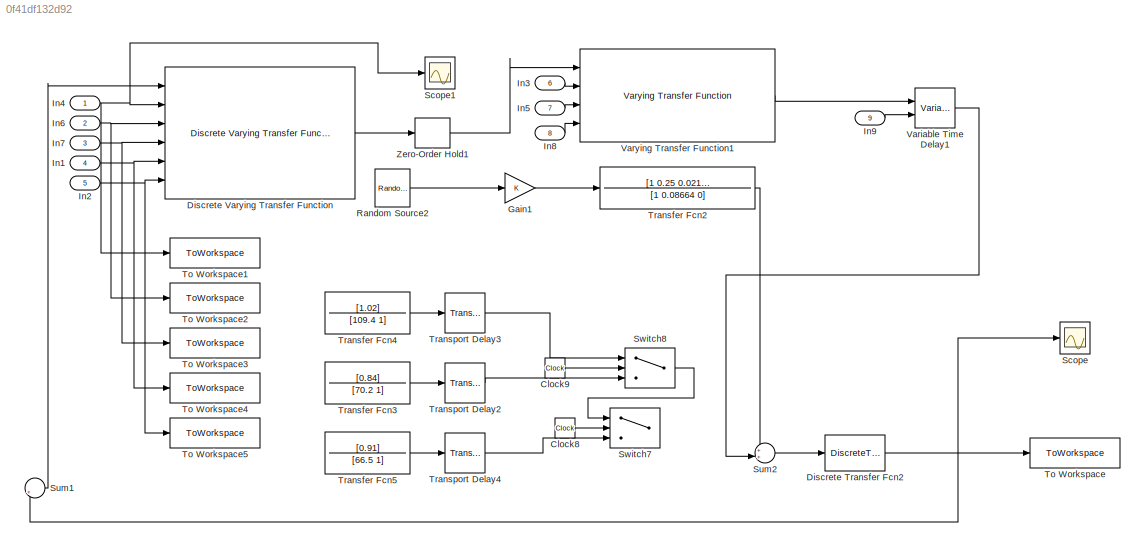
MODEL slx_0f41df132d92
KIND model
CONFIG AbsTol = auto
CONFIG EnableMultiTasking = off
CONFIG FixedStep = auto
CONFIG MaxStep = auto
CONFIG MinStep = auto
CONFIG RelTol = 1e-3
CONFIG SampleTimeConstraint = Unconstrained
CONFIG SolverName = VariableStepAuto
CONFIG StartTime = 0.0
CONFIG StopTime = 688000
BLOCK [Clock] Clock8
BLOCK [Clock] Clock9
BLOCK [DiscreteTransferFcn] Discrete Transfer Fcn2
  Denominator = [1]
  InputPortMap = u0
  Ports = [1, 1]
  SampleTime = Ts
BLOCK [Reference] Discrete Varying Transfer Function  REF=cstblocks/Linear Parameter Varying/Discrete Varying Transfer Function
  Ports = [6, 1]
  SourceBlock = cstblocks/Linear Parameter Varying/Discrete Varying Transfer Function
  SourceProductBaseCode = CT
  SourceType = Discrete Varying Transfer Function
BLOCK [Gain] Gain1
BLOCK [Inport] In1
  Port = 4
BLOCK [Inport] In2
  Port = 5
BLOCK [Inport] In3
  Port = 6
BLOCK [Inport] In4
BLOCK [Inport] In5
  Port = 7
BLOCK [Inport] In6
  Port = 2
BLOCK [Inport] In7
  Port = 3
BLOCK [Inport] In8
  Port = 8
BLOCK [Inport] In9
  Port = 9
BLOCK [Reference] Random Source2  REF=dspsrcs4/Random
Source
  Ports = [0, 1]
  SourceBlock = dspsrcs4/Random\nSource
  SourceProductBaseCode = DS
  SourceType = Random Source
  UserDataPersistent = on
BLOCK [Scope] Scope
  Floating = off
  NumInputPorts = 1
  Ports = [1]
  ScopeSpecificationString = Simulink.scopes.TimeScopeBlockCfg('CurrentConfiguration', extmgr.ConfigurationSet(extmgr.Configuration('Core','General UI',true),extmgr.Configuration('Core','Source UI',true),extmgr.Configuration('Sources','WiredSimulink',true),extmgr.Configuration('Visuals','Time Domain',true,'SerializedDisplays',{struct('MinYLimReal','-60.30013','MaxYLimReal','58.68234','YLabelReal','','MinYLimMag','0.00000','Ma...<+1377ch>
BLOCK [Scope] Scope1
  Floating = off
  NumInputPorts = 1
  Ports = [1]
  ScopeSpecificationString = Simulink.scopes.TimeScopeBlockCfg('CurrentConfiguration', extmgr.ConfigurationSet(extmgr.Configuration('Core','General UI',true),extmgr.Configuration('Core','Source UI',true),extmgr.Configuration('Sources','WiredSimulink',true,'DataLoggingVariableName','ScopeData1'),extmgr.Configuration('Visuals','Time Domain',true,'SerializedDisplays',{struct('MinYLimReal','-1.32624','MaxYLimReal','11.93614','YLa...<+1404ch>
BLOCK [Sum] Sum1
  Inputs = |+-
  Ports = [2, 1]
BLOCK [Sum] Sum2
  Inputs = ++|
  Ports = [2, 1]
BLOCK [Switch] Switch7
  Criteria = u2 > Threshold
  InputSameDT = off
  SaturateOnIntegerOverflow = off
  Threshold = 280000
BLOCK [Switch] Switch8
  Criteria = u2 > Threshold
  InputSameDT = off
  SaturateOnIntegerOverflow = off
  Threshold = 480000
BLOCK [ToWorkspace] To Workspace
  FixptAsFi = on
  MaxDataPoints = inf
  Ports = [1]
  SampleTime = Ts
  VariableName = y5
BLOCK [ToWorkspace] To Workspace1
  FixptAsFi = on
  MaxDataPoints = inf
  Ports = [1]
  SampleTime = Ts
  VariableName = znb0
BLOCK [ToWorkspace] To Workspace2
  FixptAsFi = on
  MaxDataPoints = inf
  Ports = [1]
  SampleTime = Ts
  VariableName = zna1
BLOCK [ToWorkspace] To Workspace3
  FixptAsFi = on
  MaxDataPoints = inf
  Ports = [1]
  SampleTime = Ts
  VariableName = znb1
BLOCK [ToWorkspace] To Workspace4
  FixptAsFi = on
  MaxDataPoints = inf
  Ports = [1]
  SampleTime = Ts
  VariableName = zna2
BLOCK [ToWorkspace] To Workspace5
  FixptAsFi = on
  MaxDataPoints = inf
  Ports = [1]
  SampleTime = Ts
  VariableName = znb2
BLOCK [TransferFcn] Transfer Fcn2
  Denominator = [1 0.08664 0]
  Numerator = [1 0.25 0.02166]*0.5
BLOCK [TransferFcn] Transfer Fcn3
  Denominator = [70.2 1]
  Numerator = [0.84]
BLOCK [TransferFcn] Transfer Fcn4
  Denominator = [109.4 1]
  Numerator = [1.02]
BLOCK [TransferFcn] Transfer Fcn5
  Denominator = [66.5 1]
  Numerator = [0.91]
BLOCK [TransportDelay] Transport Delay2
  DelayTime = 154
  Ports = [1, 1]
BLOCK [TransportDelay] Transport Delay3
  DelayTime = 157
  Ports = [1, 1]
BLOCK [TransportDelay] Transport Delay4
  DelayTime = 148
  Ports = [1, 1]
BLOCK [VariableTransportDelay] Variable Time Delay1
  MaximumDelay = 200
  Ports = [2, 1]
BLOCK [Reference] Varying Transfer Function1  REF=cstblocks/Linear Parameter Varying/Varying Transfer Function
  Ports = [4, 1]
  SourceBlock = cstblocks/Linear Parameter Varying/Varying Transfer Function
  SourceProductBaseCode = CT
  SourceType = Varying Transfer Function
BLOCK [ZeroOrderHold] Zero-Order Hold1
  SampleTime = Ts
LINE Clock8:1 -> Switch7:2
LINE Clock9:1 -> Switch8:2
NET Discrete Transfer Fcn2:1 -> Scope:1, Sum1:2, To Workspace:1
LINE Discrete Varying Transfer Function:1 -> Zero-Order Hold1:1
LINE Gain1:1 -> Transfer Fcn2:1
NET In1:1 -> Discrete Varying Transfer Function:5, To Workspace4:1
NET In2:1 -> Discrete Varying Transfer Function:6, To Workspace5:1
LINE In3:1 -> Varying Transfer Function1:2
NET In4:1 -> Discrete Varying Transfer Function:2, Scope1:1, To Workspace1:1
LINE In5:1 -> Varying Transfer Function1:3
NET In6:1 -> Discrete Varying Transfer Function:3, To Workspace2:1
NET In7:1 -> Discrete Varying Transfer Function:4, To Workspace3:1
LINE In8:1 -> Varying Transfer Function1:4
LINE In9:1 -> Variable Time Delay1:2
LINE Random Source2:1 -> Gain1:1
LINE Sum1:1 -> Discrete Varying Transfer Function:1
LINE Sum2:1 -> Discrete Transfer Fcn2:1
LINE Switch8:1 -> Switch7:1
LINE Transfer Fcn2:1 -> Sum2:1
LINE Transfer Fcn3:1 -> Transport Delay2:1
LINE Transfer Fcn4:1 -> Transport Delay3:1
LINE Transfer Fcn5:1 -> Transport Delay4:1
LINE Transport Delay2:1 -> Switch8:3
LINE Transport Delay3:1 -> Switch8:1
LINE Transport Delay4:1 -> Switch7:3
LINE Variable Time Delay1:1 -> Sum2:2
LINE Varying Transfer Function1:1 -> Variable Time Delay1:1
LINE Zero-Order Hold1:1 -> Varying Transfer Function1:1
note: NET lines group one-source signal fan-out (src -> all destinations, sorted); 1:1 wires keep LINE
